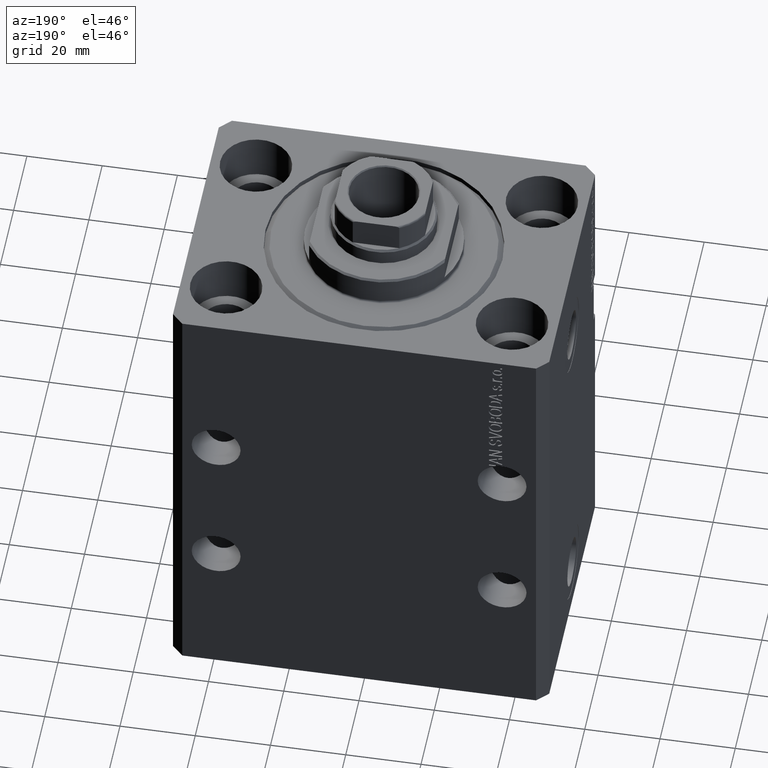
[diagram: clean part render]
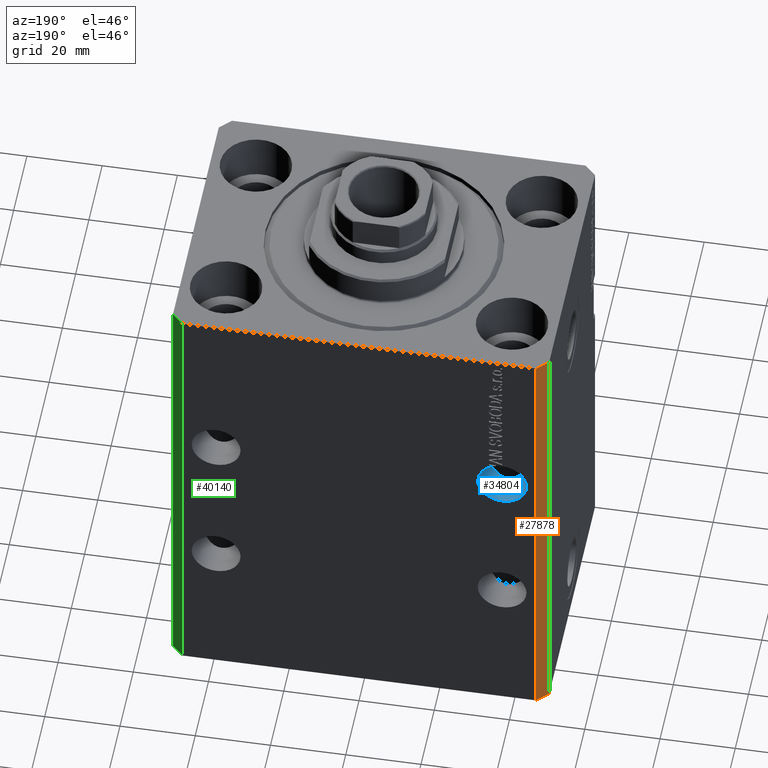
[diagram: same view with three faces highlighted in distinct colors, each labeled with its STEP entity id]
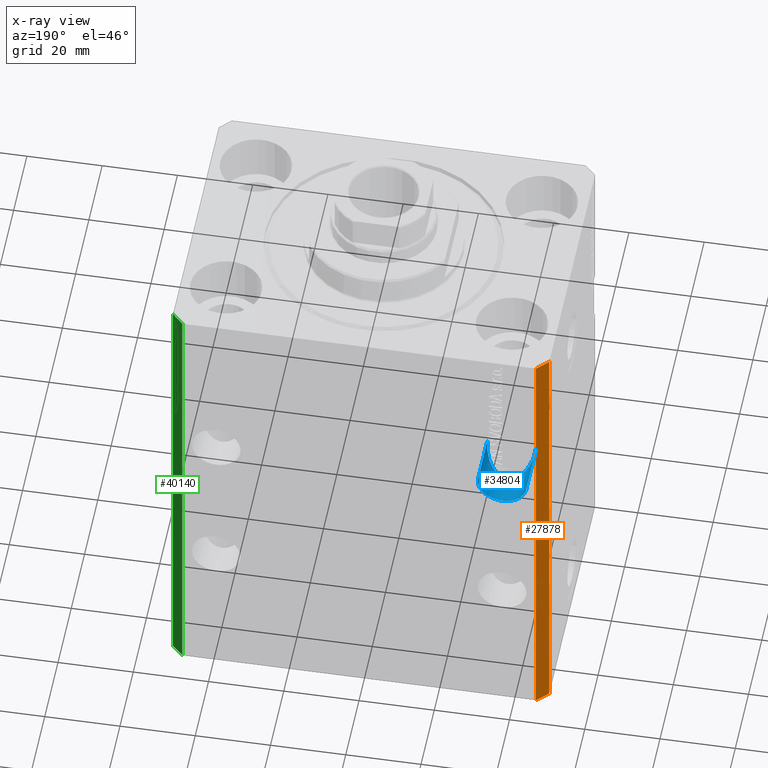
[diagram: x-ray of the same camera — body ghosted, the three highlighted faces saturated]
A machine part, auxiliary view with three faces highlighted in distinct colors.
The next image is the same camera in x-ray (body ghosted, the three faces saturated) — at least one of them is partly hidden behind the body in this view.
Their STEP definitions:

[orange] entity #27878 — the highlighted planar face has unit normal (-0.7071, 0.7071, 0).
#1748 = EDGE_CURVE ( 'NONE', #2265, #13550, #23568, .T. ) ;
#2265 = VERTEX_POINT ( 'NONE', #31137 ) ;
#2842 = ORIENTED_EDGE ( 'NONE', *, *, #15227, .F. ) ;
#3661 = AXIS2_PLACEMENT_3D ( 'NONE', #40089, #12264, #26308 ) ;
#5076 = CARTESIAN_POINT ( 'NONE',  ( -50.00000000000001421, 34.50000000000000000, 0.000000000000000000 ) ) ;
#7677 = EDGE_CURVE ( 'NONE', #2265, #42621, #39409, .T. ) ;
#7947 = VECTOR ( 'NONE', #41971, 1000.000000000000000 ) ;
#10222 = ORIENTED_EDGE ( 'NONE', *, *, #1748, .F. ) ;
#11801 = CARTESIAN_POINT ( 'NONE',  ( -47.00000000000001421, 37.50000000000000000, -125.0000000000000000 ) ) ;
#12264 = DIRECTION ( 'NONE',  ( -0.7071067811865466846, 0.7071067811865483499, 0.000000000000000000 ) ) ;
#12535 = CARTESIAN_POINT ( 'NONE',  ( -47.00000000000001421, 37.50000000000000000, -125.0000000000000000 ) ) ;
#13550 = VERTEX_POINT ( 'NONE', #16647 ) ;
#14258 = CARTESIAN_POINT ( 'NONE',  ( -50.00000000000001421, 34.50000000000000000, -125.0000000000000000 ) ) ;
#15227 = EDGE_CURVE ( 'NONE', #13550, #34751, #17004, .T. ) ;
#16647 = CARTESIAN_POINT ( 'NONE',  ( -47.00000000000001421, 37.50000000000000000, 0.000000000000000000 ) ) ;
#17004 = LINE ( 'NONE', #40699, #22420 ) ;
#17358 = LINE ( 'NONE', #20815, #7947 ) ;
#18941 = PLANE ( 'NONE',  #3661 ) ;
#20815 = CARTESIAN_POINT ( 'NONE',  ( -50.00000000000001421, 34.50000000000000000, -125.0000000000000000 ) ) ;
#22420 = VECTOR ( 'NONE', #31047, 1000.000000000000000 ) ;
#22621 = FACE_OUTER_BOUND ( 'NONE', #34759, .T. ) ;
#23568 = LINE ( 'NONE', #12535, #42773 ) ;
#26282 = DIRECTION ( 'NONE',  ( -0.7071067811865483499, -0.7071067811865466846, 0.000000000000000000 ) ) ;
#26308 = DIRECTION ( 'NONE',  ( -0.7071067811865483499, -0.7071067811865466846, 0.000000000000000000 ) ) ;
#27581 = ORIENTED_EDGE ( 'NONE', *, *, #7677, .T. ) ;
#27878 = ADVANCED_FACE ( 'NONE', ( #22621 ), #18941, .T. ) ;
#31047 = DIRECTION ( 'NONE',  ( -0.7071067811865483499, -0.7071067811865466846, 0.000000000000000000 ) ) ;
#31137 = CARTESIAN_POINT ( 'NONE',  ( -47.00000000000001421, 37.50000000000000000, -125.0000000000000000 ) ) ;
#31791 = ORIENTED_EDGE ( 'NONE', *, *, #39285, .T. ) ;
#32666 = VECTOR ( 'NONE', #26282, 1000.000000000000000 ) ;
#34751 = VERTEX_POINT ( 'NONE', #5076 ) ;
#34759 = EDGE_LOOP ( 'NONE', ( #2842, #10222, #27581, #31791 ) ) ;
#39285 = EDGE_CURVE ( 'NONE', #42621, #34751, #17358, .T. ) ;
#39409 = LINE ( 'NONE', #11801, #32666 ) ;
#40089 = CARTESIAN_POINT ( 'NONE',  ( -47.00000000000001421, 37.50000000000000000, -125.0000000000000000 ) ) ;
#40699 = CARTESIAN_POINT ( 'NONE',  ( -47.00000000000001421, 37.50000000000000000, 0.000000000000000000 ) ) ;
#41971 = DIRECTION ( 'NONE',  ( 0.000000000000000000, 0.000000000000000000, 1.000000000000000000 ) ) ;
#42621 = VERTEX_POINT ( 'NONE', #14258 ) ;
#42773 = VECTOR ( 'NONE', #44486, 1000.000000000000000 ) ;
#44486 = DIRECTION ( 'NONE',  ( 0.000000000000000000, 0.000000000000000000, 1.000000000000000000 ) ) ;

[blue] entity #34804 — the highlighted cylindrical surface (edge-blend (fillet) strip) has radius 6.5 mm, axis along (0, -1, 0).
#3772 = LINE ( 'NONE', #28374, #43011 ) ;
#7438 = CARTESIAN_POINT ( 'NONE',  ( -31.49999999999999289, 35.49999999999999289, -58.00000000000001421 ) ) ;
#8916 = ORIENTED_EDGE ( 'NONE', *, *, #32846, .T. ) ;
#12008 = LINE ( 'NONE', #40055, #17393 ) ;
#15874 = AXIS2_PLACEMENT_3D ( 'NONE', #39773, #35899, #22295 ) ;
#15951 = ORIENTED_EDGE ( 'NONE', *, *, #42283, .F. ) ;
#17066 = CARTESIAN_POINT ( 'NONE',  ( -44.49999999999999289, 35.49999999999999289, -58.00000000000001421 ) ) ;
#17393 = VECTOR ( 'NONE', #33175, 1000.000000000000000 ) ;
#18304 = ORIENTED_EDGE ( 'NONE', *, *, #36884, .F. ) ;
#21294 = ORIENTED_EDGE ( 'NONE', *, *, #40921, .T. ) ;
#21861 = CYLINDRICAL_SURFACE ( 'NONE', #15874, 6.499999999999999112 ) ;
#22295 = DIRECTION ( 'NONE',  ( 1.000000000000000000, 0.000000000000000000, 0.000000000000000000 ) ) ;
#23778 = DIRECTION ( 'NONE',  ( -1.000000000000000000, 0.000000000000000000, 0.000000000000000000 ) ) ;
#24499 =( BOUNDED_CURVE ( )  B_SPLINE_CURVE ( 3, ( #28601, #7438, #17066, #35256 ),
 .UNSPECIFIED., .F., .F. ) 
 B_SPLINE_CURVE_WITH_KNOTS ( ( 4, 4 ),
 ( 1.570796326794896558, 4.712388980384689674 ),
 .UNSPECIFIED. ) 
 CURVE ( )  GEOMETRIC_REPRESENTATION_ITEM ( )  RATIONAL_B_SPLINE_CURVE ( ( 1.000000000000000000, 0.3333333333333333703, 0.3333333333333333703, 1.000000000000000000 ) ) 
 REPRESENTATION_ITEM ( '' )  );
#24907 = DIRECTION ( 'NONE',  ( 1.101411730780568590E-16, -1.000000000000000000, -0.000000000000000000 ) ) ;
#28046 = VERTEX_POINT ( 'NONE', #33885 ) ;
#28374 = CARTESIAN_POINT ( 'NONE',  ( -44.49999999999999289, 60.50000000000002132, -45.00000000000000711 ) ) ;
#28601 = CARTESIAN_POINT ( 'NONE',  ( -31.49999999999999289, 22.50000000000000000, -45.00000000000001421 ) ) ;
#30464 = CARTESIAN_POINT ( 'NONE',  ( -37.99999999999999289, 37.50000000000000000, -45.00000000000000711 ) ) ;
#30646 = CARTESIAN_POINT ( 'NONE',  ( -44.49999999999999289, 37.50000000000000000, -45.00000000000000711 ) ) ;
#31160 = CARTESIAN_POINT ( 'NONE',  ( -31.49999999999999289, 22.50000000000000000, -45.00000000000001421 ) ) ;
#31375 = VERTEX_POINT ( 'NONE', #30646 ) ;
#32846 = EDGE_CURVE ( 'NONE', #31375, #28046, #3772, .T. ) ;
#33175 = DIRECTION ( 'NONE',  ( 1.101411730780568590E-16, -1.000000000000000000, -0.000000000000000000 ) ) ;
#33885 = CARTESIAN_POINT ( 'NONE',  ( -44.49999999999999289, 22.50000000000000000, -45.00000000000001421 ) ) ;
#34145 = DIRECTION ( 'NONE',  ( 7.381802025433175941E-17, 1.000000000000000000, -0.000000000000000000 ) ) ;
#34804 = ADVANCED_FACE ( 'NONE', ( #39337 ), #21861, .F. ) ;
#35256 = CARTESIAN_POINT ( 'NONE',  ( -44.49999999999999289, 22.50000000000000000, -45.00000000000001421 ) ) ;
#35899 = DIRECTION ( 'NONE',  ( 1.101411730780568590E-16, -1.000000000000000000, -0.000000000000000000 ) ) ;
#36712 = VERTEX_POINT ( 'NONE', #41247 ) ;
#36884 = EDGE_CURVE ( 'NONE', #36712, #44072, #12008, .T. ) ;
#39337 = FACE_OUTER_BOUND ( 'NONE', #43834, .T. ) ;
#39563 = CIRCLE ( 'NONE', #41025, 6.499999999999999112 ) ;
#39773 = CARTESIAN_POINT ( 'NONE',  ( -37.99999999999999289, 60.50000000000002132, -45.00000000000000711 ) ) ;
#40055 = CARTESIAN_POINT ( 'NONE',  ( -31.49999999999999289, 60.50000000000002132, -45.00000000000000711 ) ) ;
#40921 = EDGE_CURVE ( 'NONE', #36712, #31375, #39563, .T. ) ;
#41025 = AXIS2_PLACEMENT_3D ( 'NONE', #30464, #34145, #23778 ) ;
#41247 = CARTESIAN_POINT ( 'NONE',  ( -31.49999999999999289, 37.50000000000000000, -45.00000000000000711 ) ) ;
#42283 = EDGE_CURVE ( 'NONE', #44072, #28046, #24499, .T. ) ;
#43011 = VECTOR ( 'NONE', #24907, 1000.000000000000000 ) ;
#43834 = EDGE_LOOP ( 'NONE', ( #21294, #8916, #15951, #18304 ) ) ;
#44072 = VERTEX_POINT ( 'NONE', #31160 ) ;

[green] entity #40140 — the highlighted planar face has unit normal (0.7071, 0.7071, 0).
#619 = CARTESIAN_POINT ( 'NONE',  ( 50.00000000000051870, 34.49999999999995026, -125.0000000000000000 ) ) ;
#2538 = ORIENTED_EDGE ( 'NONE', *, *, #11161, .T. ) ;
#3181 = FACE_OUTER_BOUND ( 'NONE', #13032, .T. ) ;
#3960 = ORIENTED_EDGE ( 'NONE', *, *, #35547, .F. ) ;
#4129 = DIRECTION ( 'NONE',  ( -0.7071067811865361374, 0.7071067811865588970, 0.000000000000000000 ) ) ;
#4591 = DIRECTION ( 'NONE',  ( 0.000000000000000000, 0.000000000000000000, 1.000000000000000000 ) ) ;
#5195 = VERTEX_POINT ( 'NONE', #42529 ) ;
#7812 = LINE ( 'NONE', #22049, #12041 ) ;
#9977 = DIRECTION ( 'NONE',  ( 0.000000000000000000, 0.000000000000000000, 1.000000000000000000 ) ) ;
#11161 = EDGE_CURVE ( 'NONE', #29001, #5195, #32092, .T. ) ;
#12041 = VECTOR ( 'NONE', #4591, 1000.000000000000000 ) ;
#13032 = EDGE_LOOP ( 'NONE', ( #3960, #27900, #2538, #35506 ) ) ;
#17091 = EDGE_CURVE ( 'NONE', #5195, #35792, #44908, .T. ) ;
#21573 = CARTESIAN_POINT ( 'NONE',  ( 50.00000000000051870, 34.49999999999995026, 0.000000000000000000 ) ) ;
#22049 = CARTESIAN_POINT ( 'NONE',  ( 50.00000000000051870, 34.49999999999995026, -125.0000000000000000 ) ) ;
#24588 = CARTESIAN_POINT ( 'NONE',  ( 50.00000000000051870, 34.49999999999995026, 0.000000000000000000 ) ) ;
#25251 = CARTESIAN_POINT ( 'NONE',  ( 50.00000000000051870, 34.49999999999995026, -125.0000000000000000 ) ) ;
#27781 = DIRECTION ( 'NONE',  ( 0.7071067811865588970, 0.7071067811865361374, -0.000000000000000000 ) ) ;
#27900 = ORIENTED_EDGE ( 'NONE', *, *, #29617, .F. ) ;
#29001 = VERTEX_POINT ( 'NONE', #25251 ) ;
#29617 = EDGE_CURVE ( 'NONE', #29001, #37284, #7812, .T. ) ;
#31172 = DIRECTION ( 'NONE',  ( -0.7071067811865361374, 0.7071067811865588970, 0.000000000000000000 ) ) ;
#31212 = PLANE ( 'NONE',  #36599 ) ;
#32092 = LINE ( 'NONE', #619, #36290 ) ;
#32614 = LINE ( 'NONE', #21573, #35016 ) ;
#33898 = CARTESIAN_POINT ( 'NONE',  ( 47.00000000000056843, 37.49999999999999289, 0.000000000000000000 ) ) ;
#34290 = VECTOR ( 'NONE', #9977, 1000.000000000000000 ) ;
#35016 = VECTOR ( 'NONE', #4129, 1000.000000000000114 ) ;
#35506 = ORIENTED_EDGE ( 'NONE', *, *, #17091, .T. ) ;
#35547 = EDGE_CURVE ( 'NONE', #37284, #35792, #32614, .T. ) ;
#35792 = VERTEX_POINT ( 'NONE', #33898 ) ;
#36290 = VECTOR ( 'NONE', #31172, 1000.000000000000114 ) ;
#36599 = AXIS2_PLACEMENT_3D ( 'NONE', #45223, #27781, #38335 ) ;
#37284 = VERTEX_POINT ( 'NONE', #24588 ) ;
#38335 = DIRECTION ( 'NONE',  ( -0.7071067811865361374, 0.7071067811865588970, 0.000000000000000000 ) ) ;
#40140 = ADVANCED_FACE ( 'NONE', ( #3181 ), #31212, .T. ) ;
#42529 = CARTESIAN_POINT ( 'NONE',  ( 47.00000000000056843, 37.49999999999999289, -125.0000000000000000 ) ) ;
#44908 = LINE ( 'NONE', #45372, #34290 ) ;
#45223 = CARTESIAN_POINT ( 'NONE',  ( 50.00000000000051870, 34.49999999999995026, -125.0000000000000000 ) ) ;
#45372 = CARTESIAN_POINT ( 'NONE',  ( 47.00000000000056843, 37.49999999999999289, -125.0000000000000000 ) ) ;